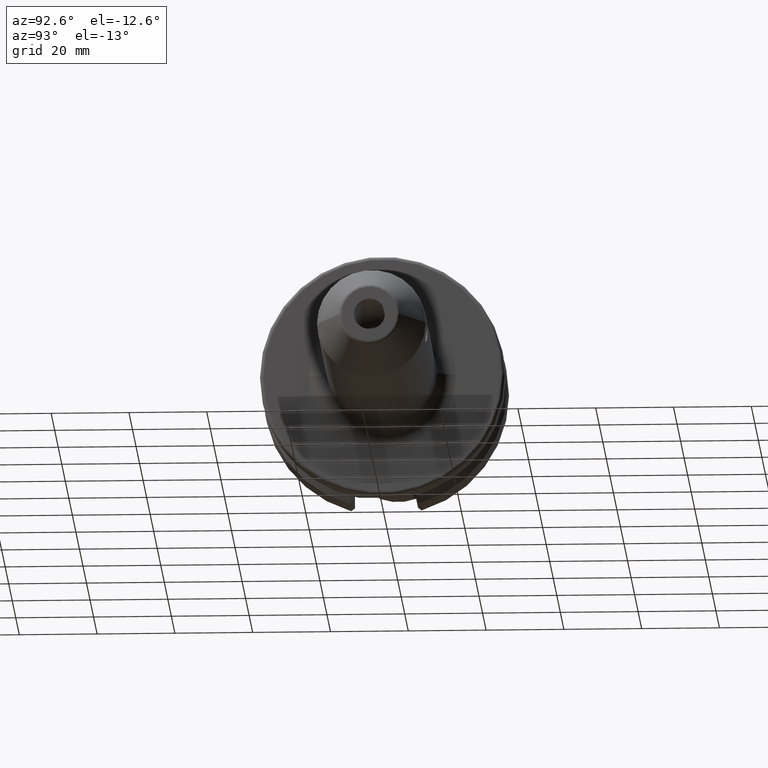
[diagram: clean part render]
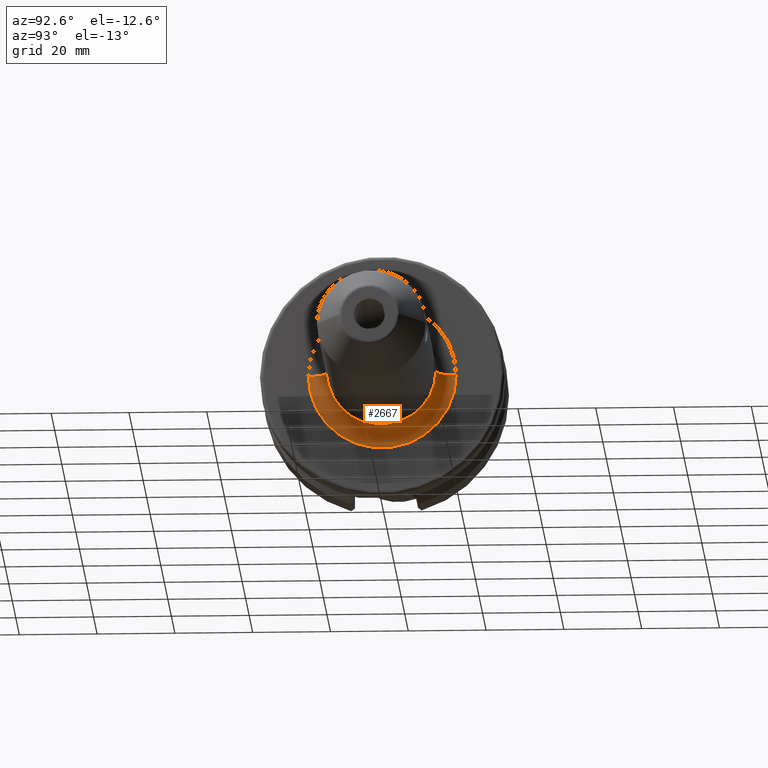
[diagram: same view with one face highlighted and labeled with its STEP entity id]
A machine part, auxiliary view. The second image highlights one B-rep face of the part: STEP entity #2667.
In plain terms, the highlighted toroidal blend (fillet) surface has major radius 19 mm and minor (blend) radius 5 mm.
Its self-contained STEP definition (entity closure, byte-faithful):
#836=CARTESIAN_POINT('',(2.7E1,0.E0,0.E0));
#837=DIRECTION('',(1.E0,0.E0,0.E0));
#838=DIRECTION('',(0.E0,-1.E0,0.E0));
#839=AXIS2_PLACEMENT_3D('',#836,#837,#838);
#846=CARTESIAN_POINT('',(3.2E1,-1.9E1,3.808148241191E-12));
#847=DIRECTION('',(0.E0,-2.004299504144E-13,-1.E0));
#848=DIRECTION('',(-1.E0,5.329070518201E-14,0.E0));
#849=AXIS2_PLACEMENT_3D('',#846,#847,#848);
#851=CARTESIAN_POINT('',(3.2E1,1.9E1,-3.811090332206E-12));
#852=DIRECTION('',(0.E0,2.005843408037E-13,1.E0));
#853=DIRECTION('',(-1.E0,-5.329070518201E-14,0.E0));
#854=AXIS2_PLACEMENT_3D('',#851,#852,#853);
#929=CARTESIAN_POINT('',(3.2E1,0.E0,0.E0));
#930=DIRECTION('',(1.E0,0.E0,0.E0));
#931=DIRECTION('',(0.E0,-1.E0,0.E0));
#932=AXIS2_PLACEMENT_3D('',#929,#930,#931);
#1529=CARTESIAN_POINT('',(2.7E1,-1.9E1,0.E0));
#1530=CARTESIAN_POINT('',(2.7E1,1.9E1,0.E0));
#1531=VERTEX_POINT('',#1529);
#1532=VERTEX_POINT('',#1530);
#1533=CARTESIAN_POINT('',(3.2E1,-1.4E1,0.E0));
#1534=CARTESIAN_POINT('',(3.2E1,1.4E1,0.E0));
#1535=VERTEX_POINT('',#1533);
#1536=VERTEX_POINT('',#1534);
#2653=CARTESIAN_POINT('',(3.2E1,0.E0,0.E0));
#2654=DIRECTION('',(1.E0,0.E0,0.E0));
#2655=DIRECTION('',(0.E0,-9.999396827548E-1,1.098320774049E-2));
#2656=AXIS2_PLACEMENT_3D('',#2653,#2654,#2655);
#2657=TOROIDAL_SURFACE('',#2656,1.9E1,5.E0);
#2658=ORIENTED_EDGE('',*,*,#2646,.F.);
#2660=ORIENTED_EDGE('',*,*,#2659,.T.);
#2662=ORIENTED_EDGE('',*,*,#2661,.T.);
#2664=ORIENTED_EDGE('',*,*,#2663,.F.);
#2665=EDGE_LOOP('',(#2658,#2660,#2662,#2664));
#2666=FACE_OUTER_BOUND('',#2665,.F.);
#2667=ADVANCED_FACE('',(#2666),#2657,.F.);
#840=CIRCLE('',#839,1.9E1);
#850=CIRCLE('',#849,5.E0);
#855=CIRCLE('',#854,5.E0);
#933=CIRCLE('',#932,1.4E1);
#2646=EDGE_CURVE('',#1531,#1532,#840,.T.);
#2659=EDGE_CURVE('',#1531,#1535,#850,.T.);
#2661=EDGE_CURVE('',#1535,#1536,#933,.T.);
#2663=EDGE_CURVE('',#1532,#1536,#855,.T.);